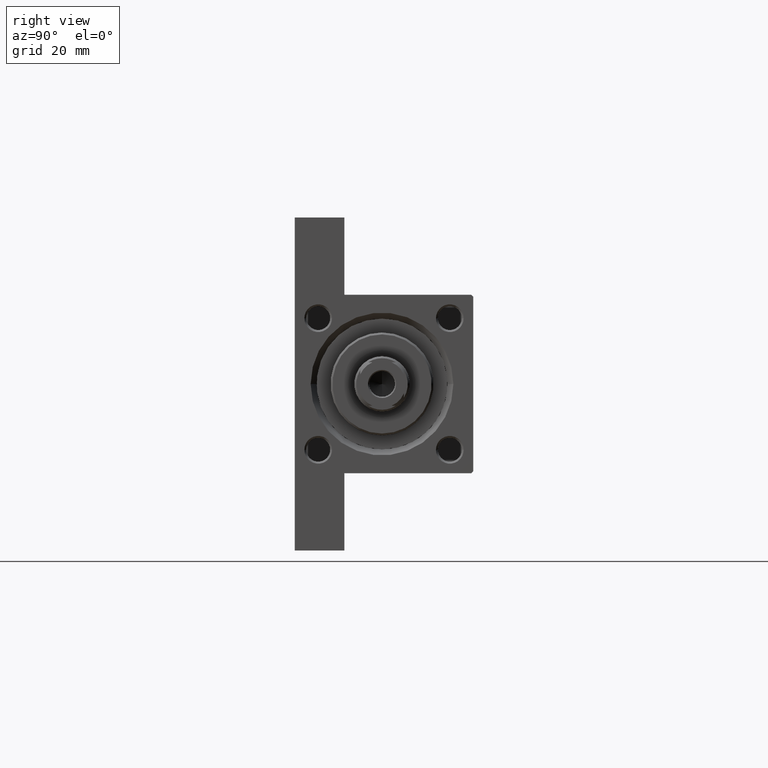
[diagram: clean part render]
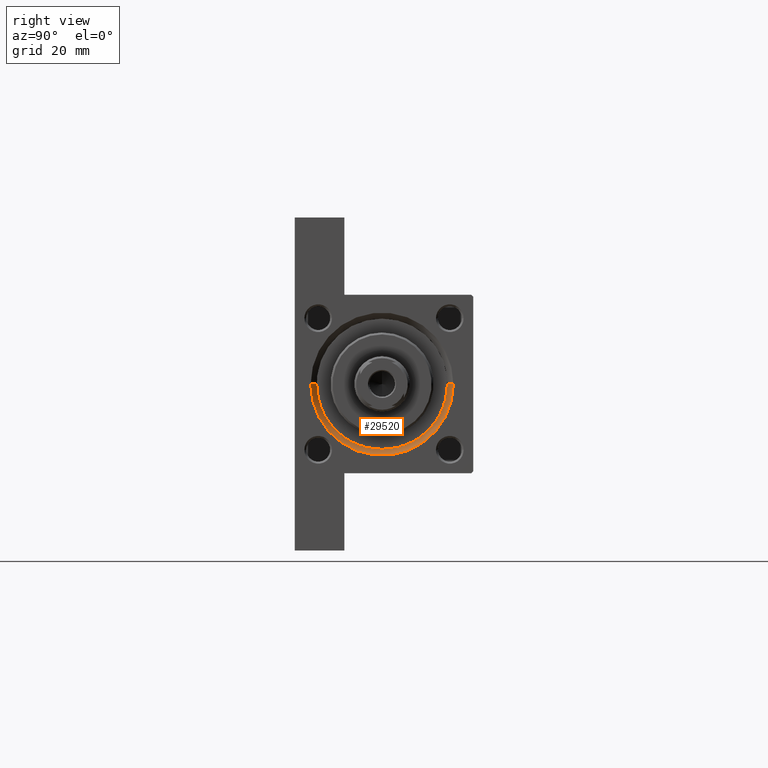
[diagram: same view with one face highlighted and labeled with its STEP entity id]
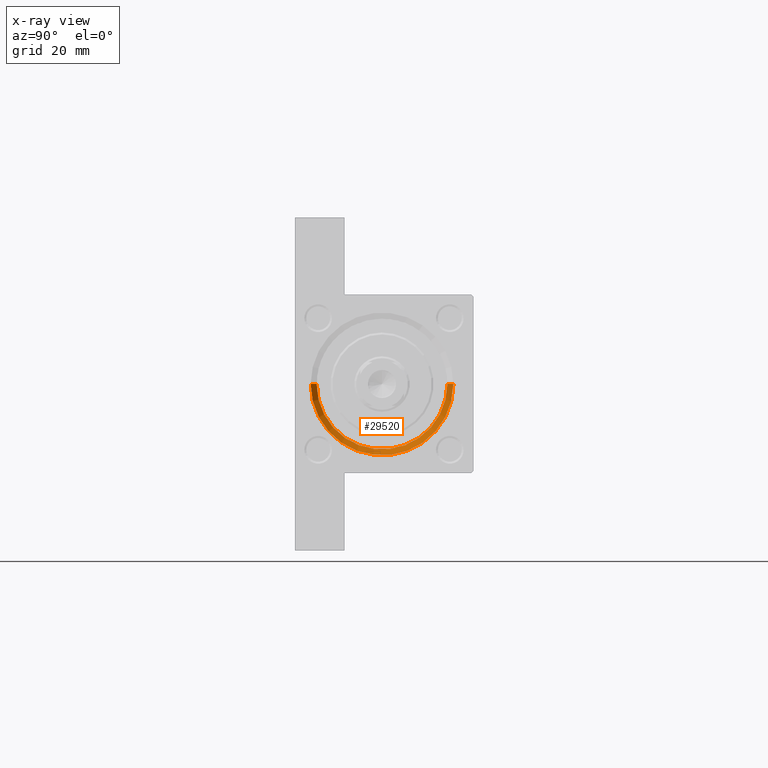
[diagram: x-ray of the same camera — body ghosted, the highlighted face saturated]
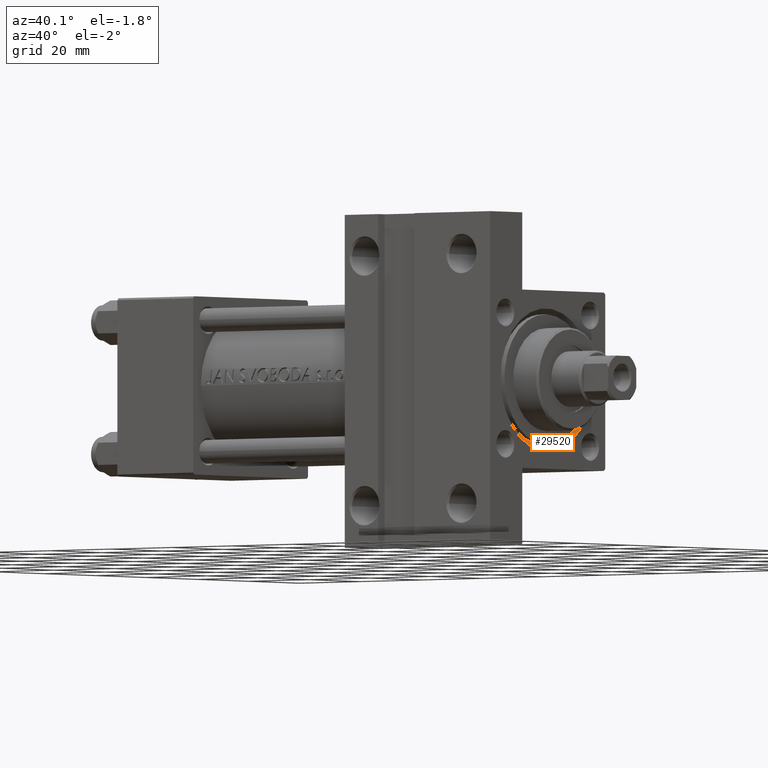
[diagram: same view with one face highlighted and labeled with its STEP entity id]
A machine part, right view. The second image highlights one B-rep face of the part: STEP entity #29520.
The next image is the same camera in x-ray: the body ghosted, the highlighted face saturated — about 0% of this face is hidden behind the body in this view.
A second angle (auxiliary view) of the same face is appended — the face is thin or edge-on in the first view.
In plain terms, the highlighted conical surface has half-angle 45 deg.
Its self-contained STEP definition (entity closure, byte-faithful):
#154 = DIRECTION ( 'NONE',  ( 0.000000000000000000, 0.000000000000000000, 1.000000000000000000 ) ) ;
#2684 = ORIENTED_EDGE ( 'NONE', *, *, #8012, .T. ) ;
#4059 = AXIS2_PLACEMENT_3D ( 'NONE', #20756, #31847, #35474 ) ;
#4837 = CIRCLE ( 'NONE', #21028, 16.50000000000000000 ) ;
#4999 = EDGE_CURVE ( 'NONE', #36775, #25103, #4837, .T. ) ;
#6046 = FACE_OUTER_BOUND ( 'NONE', #46055, .T. ) ;
#7327 = CARTESIAN_POINT ( 'NONE',  ( 121.5000000000000142, 0.000000000000000000, -16.99999999999999645 ) ) ;
#7444 = CARTESIAN_POINT ( 'NONE',  ( 121.5000000000000142, 0.000000000000000000, -16.99999999999999645 ) ) ;
#8012 = EDGE_CURVE ( 'NONE', #36775, #45649, #44470, .T. ) ;
#8429 = DIRECTION ( 'NONE',  ( 1.000000000000000000, 0.000000000000000000, 0.000000000000000000 ) ) ;
#9838 = ORIENTED_EDGE ( 'NONE', *, *, #20902, .F. ) ;
#11179 = DIRECTION ( 'NONE',  ( 0.7071067811865474617, 0.000000000000000000, -0.7071067811865474617 ) ) ;
#11788 = VERTEX_POINT ( 'NONE', #46671 ) ;
#13026 = AXIS2_PLACEMENT_3D ( 'NONE', #18005, #18475, #154 ) ;
#13811 = CIRCLE ( 'NONE', #13026, 18.00000000000000355 ) ;
#16135 = ORIENTED_EDGE ( 'NONE', *, *, #42600, .F. ) ;
#18005 = CARTESIAN_POINT ( 'NONE',  ( 123.0000000000000142, 0.000000000000000000, -0.4999999999999967804 ) ) ;
#18475 = DIRECTION ( 'NONE',  ( -1.000000000000000000, 0.000000000000000000, -0.000000000000000000 ) ) ;
#19282 = CARTESIAN_POINT ( 'NONE',  ( 121.5000000000000142, 0.000000000000000000, -0.4999999999999967804 ) ) ;
#19759 = DIRECTION ( 'NONE',  ( 0.000000000000000000, 0.000000000000000000, 1.000000000000000000 ) ) ;
#20756 = CARTESIAN_POINT ( 'NONE',  ( 121.5000000000000142, 0.000000000000000000, -0.4999999999999967804 ) ) ;
#20902 = EDGE_CURVE ( 'NONE', #11788, #45649, #13811, .T. ) ;
#21028 = AXIS2_PLACEMENT_3D ( 'NONE', #19282, #8429, #19759 ) ;
#21257 = CARTESIAN_POINT ( 'NONE',  ( 123.0000000000000142, 0.000000000000000000, -18.50000000000000000 ) ) ;
#22057 = CARTESIAN_POINT ( 'NONE',  ( 121.5000000000000142, 2.020667218593133100E-15, 16.00000000000000355 ) ) ;
#22232 = VECTOR ( 'NONE', #24180, 1000.000000000000114 ) ;
#24180 = DIRECTION ( 'NONE',  ( 0.7071067811865474617, 8.659560562354932858E-17, 0.7071067811865474617 ) ) ;
#25103 = VERTEX_POINT ( 'NONE', #22057 ) ;
#27805 = CARTESIAN_POINT ( 'NONE',  ( 121.5000000000000142, 2.020667218593133100E-15, 16.00000000000000355 ) ) ;
#29520 = ADVANCED_FACE ( 'NONE', ( #6046 ), #34120, .F. ) ;
#31847 = DIRECTION ( 'NONE',  ( 1.000000000000000000, 0.000000000000000000, 0.000000000000000000 ) ) ;
#31890 = LINE ( 'NONE', #27805, #22232 ) ;
#34120 = CONICAL_SURFACE ( 'NONE', #4059, 16.50000000000000000, 0.7853981633974482790 ) ;
#34180 = ORIENTED_EDGE ( 'NONE', *, *, #4999, .F. ) ;
#35474 = DIRECTION ( 'NONE',  ( 0.000000000000000000, 0.000000000000000000, -1.000000000000000000 ) ) ;
#36775 = VERTEX_POINT ( 'NONE', #7444 ) ;
#39570 = VECTOR ( 'NONE', #11179, 1000.000000000000114 ) ;
#42600 = EDGE_CURVE ( 'NONE', #25103, #11788, #31890, .T. ) ;
#44470 = LINE ( 'NONE', #7327, #39570 ) ;
#45649 = VERTEX_POINT ( 'NONE', #21257 ) ;
#46055 = EDGE_LOOP ( 'NONE', ( #16135, #34180, #2684, #9838 ) ) ;
#46671 = CARTESIAN_POINT ( 'NONE',  ( 123.0000000000000142, 2.204364238465235822E-15, 17.50000000000000355 ) ) ;